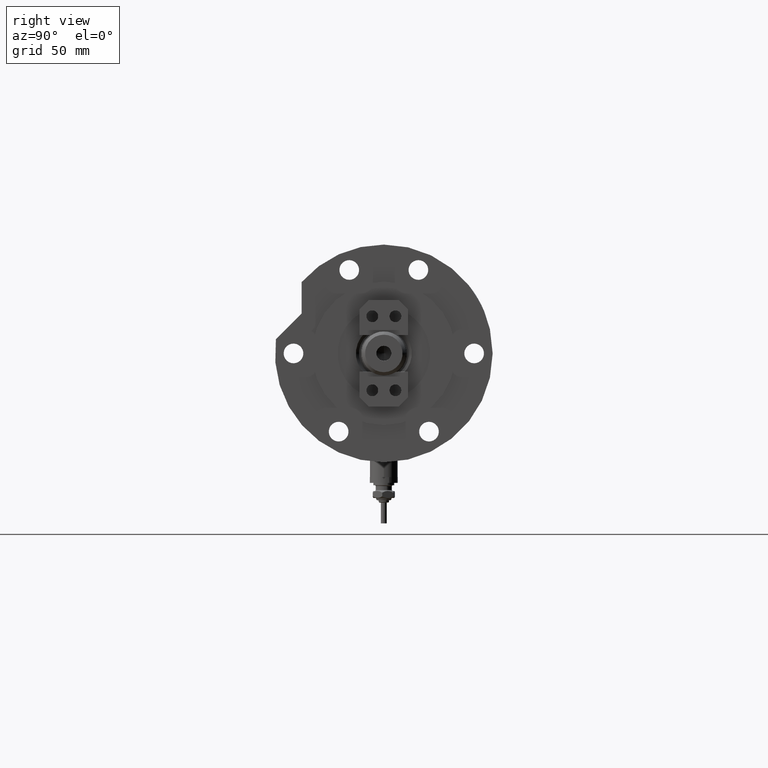
[diagram: clean part render]
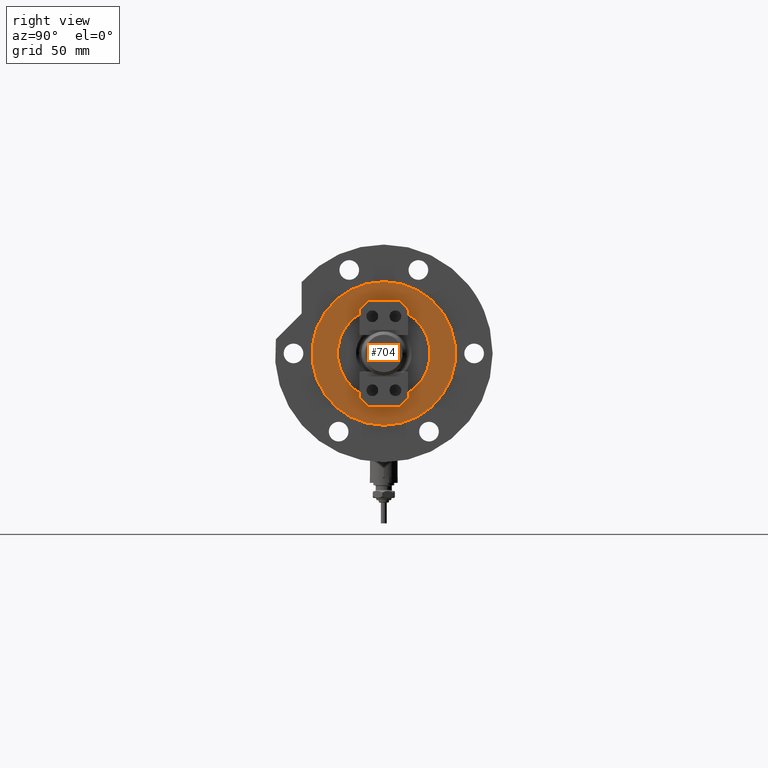
[diagram: same view with one face highlighted and labeled with its STEP entity id]
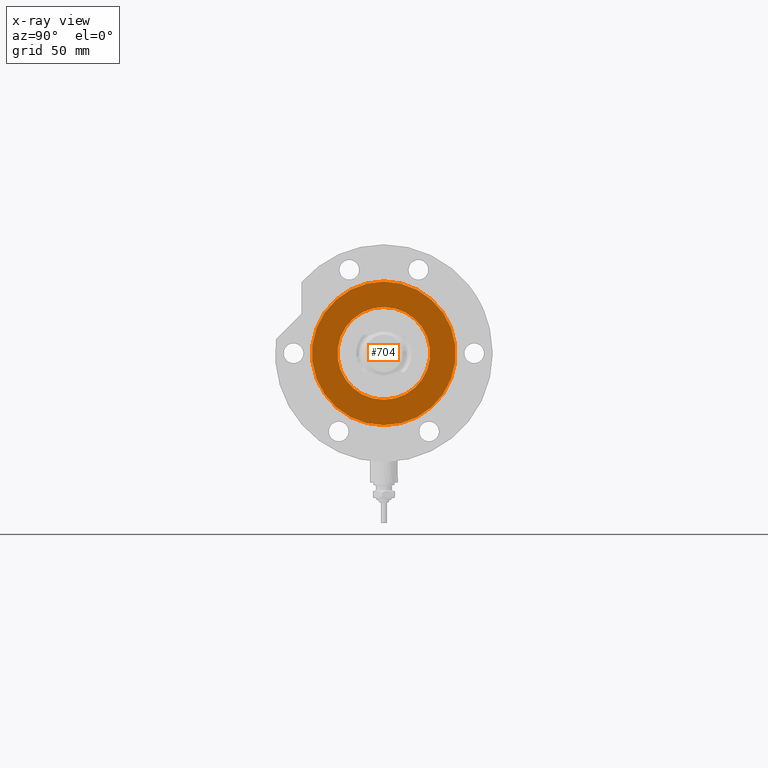
[diagram: x-ray of the same camera — body ghosted, the highlighted face saturated]
A machine part, right view. The second image highlights one B-rep face of the part: STEP entity #704.
The next image is the same camera in x-ray: the body ghosted, the highlighted face saturated — about 0% of this face is hidden behind the body in this view.
In plain terms, the highlighted planar face has unit normal (1, 0, -0).
Its self-contained STEP definition (entity closure, byte-faithful):
#86 = AXIS2_PLACEMENT_3D ( 'NONE', #6194, #2170, #8241 ) ;
#151 = ORIENTED_EDGE ( 'NONE', *, *, #4578, .F. ) ;
#465 = CIRCLE ( 'NONE', #6616, 20.00000000000000000 ) ;
#704 = ADVANCED_FACE ( 'NONE', ( #7528, #4140 ), #822, .T. ) ;
#822 = PLANE ( 'NONE',  #86 ) ;
#968 = CARTESIAN_POINT ( 'NONE',  ( 0.000000000000000000, 0.000000000000000000, 19.00000000000000355 ) ) ;
#1757 = ORIENTED_EDGE ( 'NONE', *, *, #8215, .T. ) ;
#1960 = DIRECTION ( 'NONE',  ( 1.000000000000000000, 0.000000000000000000, 0.000000000000000000 ) ) ;
#2159 = AXIS2_PLACEMENT_3D ( 'NONE', #7477, #4136, #6106 ) ;
#2170 = DIRECTION ( 'NONE',  ( 0.000000000000000000, 0.000000000000000000, 1.000000000000000000 ) ) ;
#2528 = EDGE_LOOP ( 'NONE', ( #1757, #8195 ) ) ;
#3069 = DIRECTION ( 'NONE',  ( 0.000000000000000000, 0.000000000000000000, 1.000000000000000000 ) ) ;
#3120 = VERTEX_POINT ( 'NONE', #7362 ) ;
#3193 = DIRECTION ( 'NONE',  ( 1.000000000000000000, 0.000000000000000000, 0.000000000000000000 ) ) ;
#3232 = CARTESIAN_POINT ( 'NONE',  ( 0.000000000000000000, 0.000000000000000000, 19.00000000000000355 ) ) ;
#3624 = DIRECTION ( 'NONE',  ( 1.000000000000000000, 0.000000000000000000, 0.000000000000000000 ) ) ;
#4079 = AXIS2_PLACEMENT_3D ( 'NONE', #5944, #7303, #1960 ) ;
#4136 = DIRECTION ( 'NONE',  ( 0.000000000000000000, 0.000000000000000000, 1.000000000000000000 ) ) ;
#4140 = FACE_OUTER_BOUND ( 'NONE', #2528, .T. ) ;
#4200 = CARTESIAN_POINT ( 'NONE',  ( 20.00000000000000000, 0.000000000000000000, 19.00000000000000355 ) ) ;
#4264 = CIRCLE ( 'NONE', #2159, 31.00000000000000711 ) ;
#4578 = EDGE_CURVE ( 'NONE', #3120, #6717, #8025, .T. ) ;
#5214 = CIRCLE ( 'NONE', #6480, 31.00000000000000711 ) ;
#5944 = CARTESIAN_POINT ( 'NONE',  ( 0.000000000000000000, 0.000000000000000000, 19.00000000000000355 ) ) ;
#6106 = DIRECTION ( 'NONE',  ( 1.000000000000000000, 0.000000000000000000, 0.000000000000000000 ) ) ;
#6194 = CARTESIAN_POINT ( 'NONE',  ( 0.000000000000000000, 0.000000000000000000, 19.00000000000000355 ) ) ;
#6329 = VERTEX_POINT ( 'NONE', #8136 ) ;
#6480 = AXIS2_PLACEMENT_3D ( 'NONE', #968, #3069, #3624 ) ;
#6616 = AXIS2_PLACEMENT_3D ( 'NONE', #3232, #8641, #3193 ) ;
#6717 = VERTEX_POINT ( 'NONE', #4200 ) ;
#6827 = EDGE_CURVE ( 'NONE', #8357, #6329, #5214, .T. ) ;
#6960 = EDGE_CURVE ( 'NONE', #6717, #3120, #465, .T. ) ;
#7303 = DIRECTION ( 'NONE',  ( 0.000000000000000000, 0.000000000000000000, 1.000000000000000000 ) ) ;
#7362 = CARTESIAN_POINT ( 'NONE',  ( -20.00000000000000000, 2.449293598294706513E-15, 19.00000000000000355 ) ) ;
#7477 = CARTESIAN_POINT ( 'NONE',  ( 0.000000000000000000, 0.000000000000000000, 19.00000000000000355 ) ) ;
#7528 = FACE_BOUND ( 'NONE', #8080, .T. ) ;
#8025 = CIRCLE ( 'NONE', #4079, 20.00000000000000000 ) ;
#8080 = EDGE_LOOP ( 'NONE', ( #8402, #151 ) ) ;
#8136 = CARTESIAN_POINT ( 'NONE',  ( -31.00000000000000711, 0.000000000000000000, 19.00000000000000355 ) ) ;
#8195 = ORIENTED_EDGE ( 'NONE', *, *, #6827, .T. ) ;
#8215 = EDGE_CURVE ( 'NONE', #6329, #8357, #4264, .T. ) ;
#8241 = DIRECTION ( 'NONE',  ( 1.000000000000000000, 0.000000000000000000, -0.000000000000000000 ) ) ;
#8357 = VERTEX_POINT ( 'NONE', #8499 ) ;
#8402 = ORIENTED_EDGE ( 'NONE', *, *, #6960, .F. ) ;
#8499 = CARTESIAN_POINT ( 'NONE',  ( 31.00000000000000711, 3.796405077356795904E-15, 19.00000000000000355 ) ) ;
#8641 = DIRECTION ( 'NONE',  ( 0.000000000000000000, 0.000000000000000000, 1.000000000000000000 ) ) ;